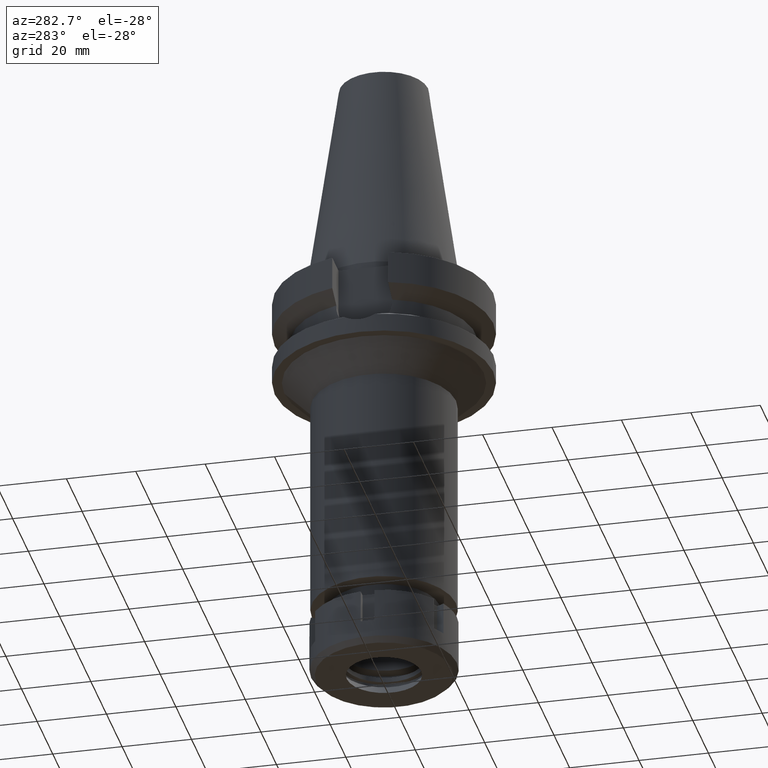
[diagram: clean part render]
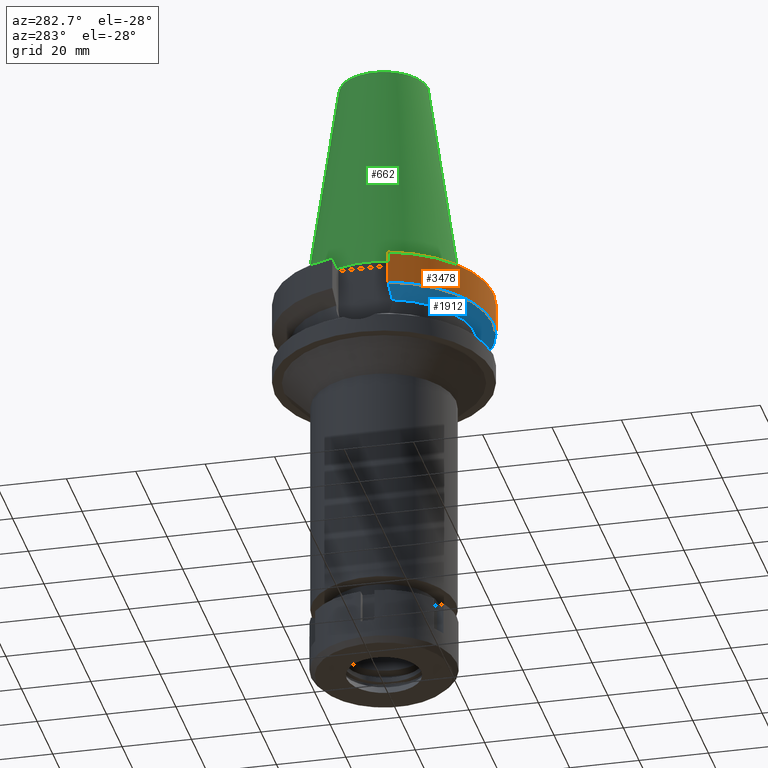
[diagram: same view with three faces highlighted in distinct colors, each labeled with its STEP entity id]
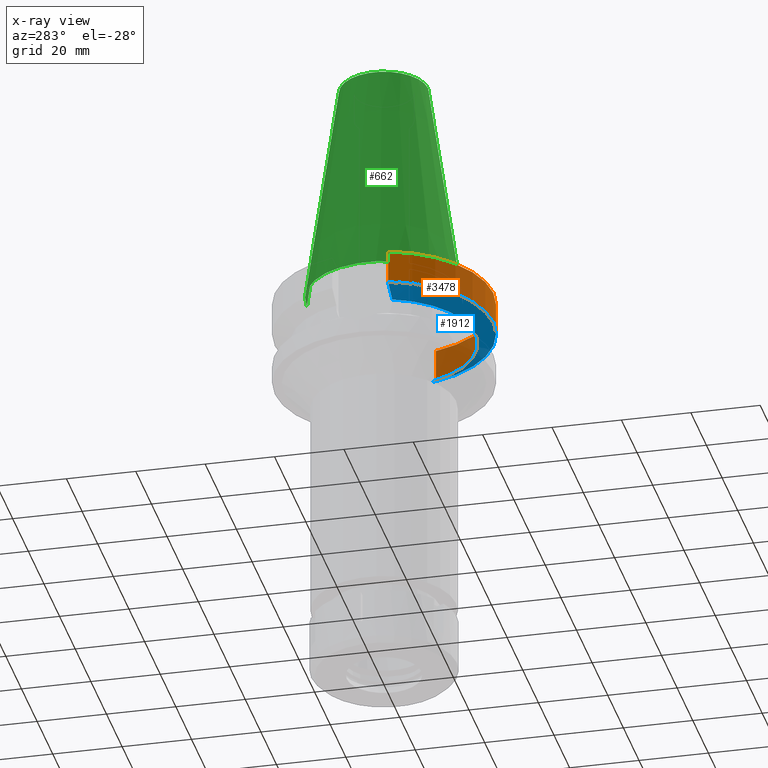
[diagram: x-ray of the same camera — body ghosted, the three highlighted faces saturated]
A machine part, auxiliary view with three faces highlighted in distinct colors.
The next image is the same camera in x-ray (body ghosted, the three faces saturated) — at least one of them is partly hidden behind the body in this view.
Their STEP definitions:

[orange] entity #3478 — the highlighted cylindrical surface (partial cylindrical patch) has radius 31.5 mm, axis along (0, 0, -1).
#12 = CARTESIAN_POINT ( 'NONE',  ( 0.0000000000000000000, 2.134191976873999699E-14, -2.000000000000000000 ) ) ;
#24 = DIRECTION ( 'NONE',  ( 0.0000000000000000000, -1.000000000000000000, 0.0000000000000000000 ) ) ;
#160 = VERTEX_POINT ( 'NONE', #2286 ) ;
#165 = AXIS2_PLACEMENT_3D ( 'NONE', #1392, #2525, #24 ) ;
#351 = CARTESIAN_POINT ( 'NONE',  ( 30.45402272279000044, -8.050000000000000711, -2.000000000000000000 ) ) ;
#354 = VERTEX_POINT ( 'NONE', #351 ) ;
#516 = ORIENTED_EDGE ( 'NONE', *, *, #561, .T. ) ;
#532 = CYLINDRICAL_SURFACE ( 'NONE', #165, 31.50000000000000000 ) ;
#543 = EDGE_CURVE ( 'NONE', #354, #1901, #2712, .T. ) ;
#561 = EDGE_CURVE ( 'NONE', #354, #677, #2812, .T. ) ;
#565 = DIRECTION ( 'NONE',  ( 0.0000000000000000000, 0.0000000000000000000, -1.000000000000000000 ) ) ;
#677 = VERTEX_POINT ( 'NONE', #3362 ) ;
#744 = CARTESIAN_POINT ( 'NONE',  ( 30.45402272279000044, -8.050000000000000711, -2.000000000000000000 ) ) ;
#1080 = FACE_OUTER_BOUND ( 'NONE', #2598, .T. ) ;
#1149 = ORIENTED_EDGE ( 'NONE', *, *, #2333, .T. ) ;
#1276 = EDGE_CURVE ( 'NONE', #160, #677, #3357, .T. ) ;
#1280 = AXIS2_PLACEMENT_3D ( 'NONE', #1950, #1437, #3091 ) ;
#1392 = CARTESIAN_POINT ( 'NONE',  ( 0.0000000000000000000, 2.134191976873999699E-14, 74.26999999999999602 ) ) ;
#1408 = CARTESIAN_POINT ( 'NONE',  ( -30.45402291362999847, -8.049999278012000659, -11.56551215546999956 ) ) ;
#1437 = DIRECTION ( 'NONE',  ( 0.0000000000000000000, 0.0000000000000000000, 1.000000000000000000 ) ) ;
#1688 = VECTOR ( 'NONE', #2505, 1000.000000000000227 ) ;
#1877 = DIRECTION ( 'NONE',  ( -1.145246352976999476E-07, -4.332585199966997821E-07, -0.9999999999998996358 ) ) ;
#1901 = VERTEX_POINT ( 'NONE', #2284 ) ;
#1950 = CARTESIAN_POINT ( 'NONE',  ( 0.0000000000000000000, 1.065333950388000029E-14, -11.56550565266999975 ) ) ;
#2281 = AXIS2_PLACEMENT_3D ( 'NONE', #12, #565, #3307 ) ;
#2284 = CARTESIAN_POINT ( 'NONE',  ( 30.45402272279000044, -8.049999999999000622, -11.56550565266999975 ) ) ;
#2286 = CARTESIAN_POINT ( 'NONE',  ( -30.45402291362999847, -8.049999278012000659, -11.56551215546999956 ) ) ;
#2333 = EDGE_CURVE ( 'NONE', #160, #1901, #2879, .T. ) ;
#2480 = ORIENTED_EDGE ( 'NONE', *, *, #543, .F. ) ;
#2505 = DIRECTION ( 'NONE',  ( 1.995131790331989091E-08, -7.547825885559957923E-08, 0.9999999999999968914 ) ) ;
#2525 = DIRECTION ( 'NONE',  ( 0.0000000000000000000, 0.0000000000000000000, -1.000000000000000000 ) ) ;
#2580 = VECTOR ( 'NONE', #1877, 1000.000000000000000 ) ;
#2598 = EDGE_LOOP ( 'NONE', ( #2880, #1149, #2480, #516 ) ) ;
#2712 = LINE ( 'NONE', #744, #2580 ) ;
#2812 = CIRCLE ( 'NONE', #2281, 31.50000000000000000 ) ;
#2879 = CIRCLE ( 'NONE', #1280, 31.50000000000000000 ) ;
#2880 = ORIENTED_EDGE ( 'NONE', *, *, #1276, .F. ) ;
#3091 = DIRECTION ( 'NONE',  ( 0.0000000000000000000, -1.000000000000000000, 0.0000000000000000000 ) ) ;
#3307 = DIRECTION ( 'NONE',  ( 0.0000000000000000000, -1.000000000000000000, 0.0000000000000000000 ) ) ;
#3357 = LINE ( 'NONE', #1408, #1688 ) ;
#3362 = CARTESIAN_POINT ( 'NONE',  ( -30.45402272279000044, -8.050000000000000711, -2.000000000000000000 ) ) ;
#3478 = ADVANCED_FACE ( 'NONE', ( #1080 ), #532, .T. ) ;

[blue] entity #1912 — the highlighted conical surface has half-angle 60 deg.
#160 = VERTEX_POINT ( 'NONE', #2286 ) ;
#301 = EDGE_CURVE ( 'NONE', #160, #368, #2129, .T. ) ;
#312 = DIRECTION ( 'NONE',  ( 0.0000000000000000000, 0.0000000000000000000, 1.000000000000000000 ) ) ;
#349 = CARTESIAN_POINT ( 'NONE',  ( 0.0000000000000000000, 1.065333950388000029E-14, -13.00888132564000088 ) ) ;
#368 = VERTEX_POINT ( 'NONE', #1556 ) ;
#661 = CARTESIAN_POINT ( 'NONE',  ( -26.83754615526542153, -8.049990820970586825, -13.57774888378038192 ) ) ;
#908 = CARTESIAN_POINT ( 'NONE',  ( -25.24772413127999826, -8.049995415561999934, -14.45229202969999882 ) ) ;
#933 = CARTESIAN_POINT ( 'NONE',  ( -28.57292328601004527, -8.049998556963609886, -12.61549605777351601 ) ) ;
#1048 = CONICAL_SURFACE ( 'NONE', #1341, 29.00000000000000000, 1.047197551196400456 ) ;
#1121 = ORIENTED_EDGE ( 'NONE', *, *, #2333, .F. ) ;
#1280 = AXIS2_PLACEMENT_3D ( 'NONE', #1950, #1437, #3091 ) ;
#1341 = AXIS2_PLACEMENT_3D ( 'NONE', #349, #312, #3457 ) ;
#1358 = ORIENTED_EDGE ( 'NONE', *, *, #2463, .T. ) ;
#1437 = DIRECTION ( 'NONE',  ( 0.0000000000000000000, 0.0000000000000000000, 1.000000000000000000 ) ) ;
#1541 = B_SPLINE_CURVE_WITH_KNOTS ( 'NONE', 3,
 ( #2272, #3388, #3146, #2390 ),
 .UNSPECIFIED., .F., .F.,
 ( 4, 4 ),
 ( 0.0000000000000000000, 1.000000000000000000 ),
 .UNSPECIFIED. ) ;
#1556 = CARTESIAN_POINT ( 'NONE',  ( -25.24772413127999826, -8.049995415561999934, -14.45229202969999882 ) ) ;
#1594 = DIRECTION ( 'NONE',  ( 0.0000000000000000000, 0.0000000000000000000, -1.000000000000000000 ) ) ;
#1841 = ORIENTED_EDGE ( 'NONE', *, *, #3286, .F. ) ;
#1872 = CARTESIAN_POINT ( 'NONE',  ( 0.0000000000000000000, 1.065333950388000029E-14, -14.45225699861000024 ) ) ;
#1901 = VERTEX_POINT ( 'NONE', #2284 ) ;
#1912 = ADVANCED_FACE ( 'NONE', ( #2856 ), #1048, .T. ) ;
#1950 = CARTESIAN_POINT ( 'NONE',  ( 0.0000000000000000000, 1.065333950388000029E-14, -11.56550565266999975 ) ) ;
#2129 = B_SPLINE_CURVE_WITH_KNOTS ( 'NONE', 3,
 ( #3178, #933, #661, #908 ),
 .UNSPECIFIED., .F., .F.,
 ( 4, 4 ),
 ( 0.0000000000000000000, 1.000000000000000000 ),
 .UNSPECIFIED. ) ;
#2272 = CARTESIAN_POINT ( 'NONE',  ( 25.24772266958000344, -8.050000000000000711, -14.45225699861000024 ) ) ;
#2284 = CARTESIAN_POINT ( 'NONE',  ( 30.45402272279000044, -8.049999999999000622, -11.56550565266999975 ) ) ;
#2286 = CARTESIAN_POINT ( 'NONE',  ( -30.45402291362999847, -8.049999278012000659, -11.56551215546999956 ) ) ;
#2333 = EDGE_CURVE ( 'NONE', #160, #1901, #2879, .T. ) ;
#2390 = CARTESIAN_POINT ( 'NONE',  ( 30.45402272279000044, -8.049999999999000622, -11.56550565266999975 ) ) ;
#2463 = EDGE_CURVE ( 'NONE', #3602, #1901, #1541, .T. ) ;
#2594 = CARTESIAN_POINT ( 'NONE',  ( 25.24772266958000344, -8.050000000000000711, -14.45225699861000024 ) ) ;
#2724 = DIRECTION ( 'NONE',  ( 0.9527442516822307583, -0.3037735849057093818, 0.0000000000000000000 ) ) ;
#2856 = FACE_OUTER_BOUND ( 'NONE', #3025, .T. ) ;
#2879 = CIRCLE ( 'NONE', #1280, 31.50000000000000000 ) ;
#3025 = EDGE_LOOP ( 'NONE', ( #3142, #1841, #1358, #1121 ) ) ;
#3091 = DIRECTION ( 'NONE',  ( 0.0000000000000000000, -1.000000000000000000, 0.0000000000000000000 ) ) ;
#3142 = ORIENTED_EDGE ( 'NONE', *, *, #301, .T. ) ;
#3146 = CARTESIAN_POINT ( 'NONE',  ( 28.57294949470615464, -8.050008281919359021, -12.61547991551893411 ) ) ;
#3164 = CIRCLE ( 'NONE', #3219, 26.50000000000000711 ) ;
#3178 = CARTESIAN_POINT ( 'NONE',  ( -30.45402291362999847, -8.049999278012000659, -11.56551215546999956 ) ) ;
#3219 = AXIS2_PLACEMENT_3D ( 'NONE', #1872, #1594, #2724 ) ;
#3286 = EDGE_CURVE ( 'NONE', #3602, #368, #3164, .T. ) ;
#3388 = CARTESIAN_POINT ( 'NONE',  ( 26.83757727987838848, -8.050003175967617608, -13.57772966443597440 ) ) ;
#3457 = DIRECTION ( 'NONE',  ( 0.0000000000000000000, 1.000000000000000000, 0.0000000000000000000 ) ) ;
#3602 = VERTEX_POINT ( 'NONE', #2594 ) ;

[green] entity #662 — the highlighted conical surface has half-angle 8.297 deg.
#72 = LINE ( 'NONE', #647, #1633 ) ;
#152 = AXIS2_PLACEMENT_3D ( 'NONE', #1442, #2280, #2904 ) ;
#291 = FACE_OUTER_BOUND ( 'NONE', #965, .T. ) ;
#608 = VERTEX_POINT ( 'NONE', #1131 ) ;
#647 = CARTESIAN_POINT ( 'NONE',  ( 0.0000000000000000000, 12.68766899429999917, 65.40000000000000568 ) ) ;
#662 = ADVANCED_FACE ( 'NONE', ( #291 ), #2396, .T. ) ;
#798 = EDGE_CURVE ( 'NONE', #608, #2305, #2924, .T. ) ;
#825 = CARTESIAN_POINT ( 'NONE',  ( 0.0000000000000000000, 1.625106302469000024E-14, 32.70000000000000284 ) ) ;
#965 = EDGE_LOOP ( 'NONE', ( #1587, #2416, #2693, #2840 ) ) ;
#1034 = EDGE_CURVE ( 'NONE', #1711, #2305, #72, .T. ) ;
#1083 = DIRECTION ( 'NONE',  ( 0.0000000000000000000, 0.0000000000000000000, -1.000000000000000000 ) ) ;
#1131 = CARTESIAN_POINT ( 'NONE',  ( 0.0000000000000000000, -22.22500000000000142, 2.842170943039999687E-14 ) ) ;
#1441 = CARTESIAN_POINT ( 'NONE',  ( 0.0000000000000000000, 1.625106302469000024E-14, 65.40000000000000568 ) ) ;
#1442 = CARTESIAN_POINT ( 'NONE',  ( 0.0000000000000000000, 1.625106302469000024E-14, 2.842170943039999687E-14 ) ) ;
#1579 = CIRCLE ( 'NONE', #1753, 12.68766899429999917 ) ;
#1587 = ORIENTED_EDGE ( 'NONE', *, *, #798, .F. ) ;
#1629 = LINE ( 'NONE', #3226, #2116 ) ;
#1633 = VECTOR ( 'NONE', #2639, 1000.000000000000114 ) ;
#1665 = VERTEX_POINT ( 'NONE', #2431 ) ;
#1711 = VERTEX_POINT ( 'NONE', #2963 ) ;
#1736 = DIRECTION ( 'NONE',  ( 0.0000000000000000000, 0.0000000000000000000, -1.000000000000000000 ) ) ;
#1753 = AXIS2_PLACEMENT_3D ( 'NONE', #1441, #1736, #2577 ) ;
#2116 = VECTOR ( 'NONE', #2406, 1000.000000000000114 ) ;
#2280 = DIRECTION ( 'NONE',  ( 0.0000000000000000000, 0.0000000000000000000, -1.000000000000000000 ) ) ;
#2305 = VERTEX_POINT ( 'NONE', #2795 ) ;
#2396 = CONICAL_SURFACE ( 'NONE', #3206, 17.45633449714999941, 0.1448099680379422438 ) ;
#2406 = DIRECTION ( 'NONE',  ( 0.0000000000000000000, -0.1443043893539925626, -0.9895333461855498891 ) ) ;
#2416 = ORIENTED_EDGE ( 'NONE', *, *, #3369, .F. ) ;
#2431 = CARTESIAN_POINT ( 'NONE',  ( 0.0000000000000000000, -12.68766899429999917, 65.40000000000000568 ) ) ;
#2577 = DIRECTION ( 'NONE',  ( 0.0000000000000000000, -1.000000000000000000, 0.0000000000000000000 ) ) ;
#2639 = DIRECTION ( 'NONE',  ( 0.0000000000000000000, 0.1443043893539925626, -0.9895333461855498891 ) ) ;
#2693 = ORIENTED_EDGE ( 'NONE', *, *, #2976, .T. ) ;
#2795 = CARTESIAN_POINT ( 'NONE',  ( 0.0000000000000000000, 22.22500000000000142, 9.947598300640998705E-14 ) ) ;
#2840 = ORIENTED_EDGE ( 'NONE', *, *, #1034, .T. ) ;
#2904 = DIRECTION ( 'NONE',  ( 0.0000000000000000000, -1.000000000000000000, 0.0000000000000000000 ) ) ;
#2924 = CIRCLE ( 'NONE', #152, 22.22500000000000142 ) ;
#2963 = CARTESIAN_POINT ( 'NONE',  ( 0.0000000000000000000, 12.68766899429999917, 65.40000000000000568 ) ) ;
#2976 = EDGE_CURVE ( 'NONE', #1665, #1711, #1579, .T. ) ;
#3206 = AXIS2_PLACEMENT_3D ( 'NONE', #825, #1083, #3344 ) ;
#3226 = CARTESIAN_POINT ( 'NONE',  ( 0.0000000000000000000, -12.68766899429999917, 65.40000000000000568 ) ) ;
#3344 = DIRECTION ( 'NONE',  ( 0.0000000000000000000, -1.000000000000000000, 0.0000000000000000000 ) ) ;
#3369 = EDGE_CURVE ( 'NONE', #1665, #608, #1629, .T. ) ;